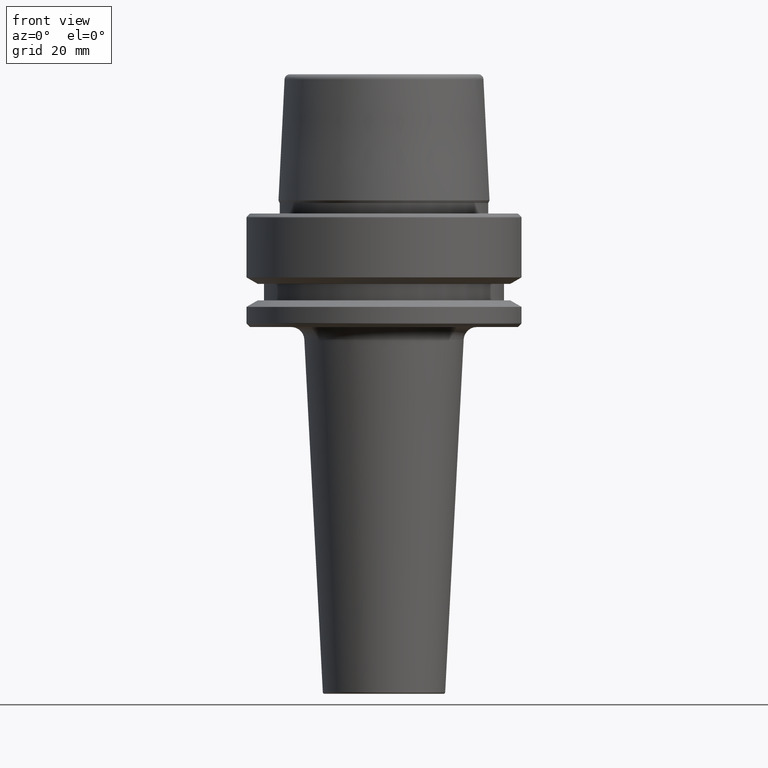
[diagram: clean part render]
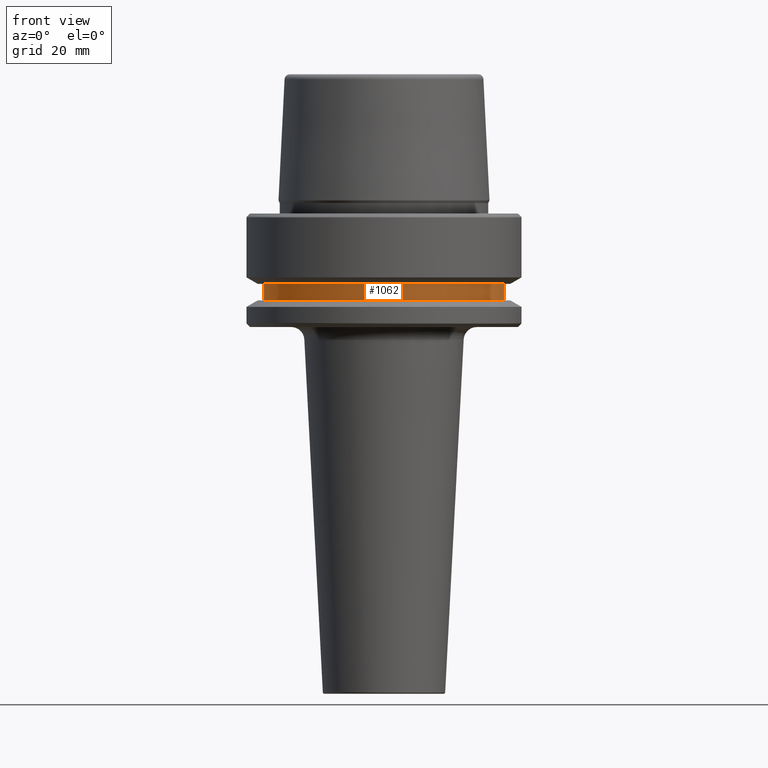
[diagram: same view with one face highlighted and labeled with its STEP entity id]
A machine part, front view. The second image highlights one B-rep face of the part: STEP entity #1062.
In plain terms, the highlighted cylindrical surface (partial cylindrical patch) has radius 27.5 mm, axis along (-0, -0, 1).
Its self-contained STEP definition (entity closure, byte-faithful):
#29 = EDGE_CURVE ( 'NONE', #708, #503, #348, .T. ) ;
#72 = CARTESIAN_POINT ( 'NONE',  ( 27.49999999999999600, 0.0000000000000000000, -16.10000000000001600 ) ) ;
#214 = DIRECTION ( 'NONE',  ( 1.000000000000000000, 0.0000000000000000000, 0.0000000000000000000 ) ) ;
#221 = DIRECTION ( 'NONE',  ( 1.000000000000000000, 0.0000000000000000000, 0.0000000000000000000 ) ) ;
#258 = CYLINDRICAL_SURFACE ( 'NONE', #569, 27.49999999999999600 ) ;
#299 = CARTESIAN_POINT ( 'NONE',  ( 27.49999999999999600, 0.0000000000000000000, -19.90000000000001600 ) ) ;
#311 = DIRECTION ( 'NONE',  ( -0.0000000000000000000, -0.0000000000000000000, 1.000000000000000000 ) ) ;
#336 = VERTEX_POINT ( 'NONE', #72 ) ;
#348 = CIRCLE ( 'NONE', #497, 27.49999999999999600 ) ;
#398 = ORIENTED_EDGE ( 'NONE', *, *, #1114, .F. ) ;
#418 = ORIENTED_EDGE ( 'NONE', *, *, #445, .F. ) ;
#441 = CARTESIAN_POINT ( 'NONE',  ( 0.0000000000000000000, 0.0000000000000000000, -16.10000000000001600 ) ) ;
#445 = EDGE_CURVE ( 'NONE', #708, #684, #789, .T. ) ;
#458 = CARTESIAN_POINT ( 'NONE',  ( -27.49999999999999600, 3.367778697655220900E-015, -19.90000000000001600 ) ) ;
#486 = DIRECTION ( 'NONE',  ( 1.000000000000000000, 0.0000000000000000000, 0.0000000000000000000 ) ) ;
#497 = AXIS2_PLACEMENT_3D ( 'NONE', #1061, #651, #214 ) ;
#503 = VERTEX_POINT ( 'NONE', #299 ) ;
#569 = AXIS2_PLACEMENT_3D ( 'NONE', #604, #311, #486 ) ;
#572 = CARTESIAN_POINT ( 'NONE',  ( -27.49999999999999600, 3.367778697655220900E-015, -16.10000000000001600 ) ) ;
#604 = CARTESIAN_POINT ( 'NONE',  ( 0.0000000000000000000, 0.0000000000000000000, 78.96908074195309300 ) ) ;
#645 = VECTOR ( 'NONE', #919, 1000.000000000000000 ) ;
#651 = DIRECTION ( 'NONE',  ( -0.0000000000000000000, -0.0000000000000000000, 1.000000000000000000 ) ) ;
#684 = VERTEX_POINT ( 'NONE', #572 ) ;
#708 = VERTEX_POINT ( 'NONE', #458 ) ;
#737 = CARTESIAN_POINT ( 'NONE',  ( 27.49999999999999600, 0.0000000000000000000, 78.96908074195309300 ) ) ;
#777 = AXIS2_PLACEMENT_3D ( 'NONE', #441, #915, #221 ) ;
#789 = LINE ( 'NONE', #1011, #645 ) ;
#846 = ORIENTED_EDGE ( 'NONE', *, *, #1235, .T. ) ;
#915 = DIRECTION ( 'NONE',  ( -0.0000000000000000000, -0.0000000000000000000, 1.000000000000000000 ) ) ;
#919 = DIRECTION ( 'NONE',  ( -0.0000000000000000000, -0.0000000000000000000, 1.000000000000000000 ) ) ;
#969 = ORIENTED_EDGE ( 'NONE', *, *, #29, .T. ) ;
#1011 = CARTESIAN_POINT ( 'NONE',  ( -27.49999999999999600, 3.367778697655220900E-015, 78.96908074195309300 ) ) ;
#1061 = CARTESIAN_POINT ( 'NONE',  ( 0.0000000000000000000, 0.0000000000000000000, -19.90000000000001600 ) ) ;
#1062 = ADVANCED_FACE ( 'NONE', ( #1215 ), #258, .T. ) ;
#1084 = EDGE_LOOP ( 'NONE', ( #418, #969, #846, #398 ) ) ;
#1114 = EDGE_CURVE ( 'NONE', #684, #336, #1236, .T. ) ;
#1133 = VECTOR ( 'NONE', #1221, 1000.000000000000000 ) ;
#1214 = LINE ( 'NONE', #737, #1133 ) ;
#1215 = FACE_OUTER_BOUND ( 'NONE', #1084, .T. ) ;
#1221 = DIRECTION ( 'NONE',  ( -0.0000000000000000000, -0.0000000000000000000, 1.000000000000000000 ) ) ;
#1235 = EDGE_CURVE ( 'NONE', #503, #336, #1214, .T. ) ;
#1236 = CIRCLE ( 'NONE', #777, 27.49999999999999600 ) ;